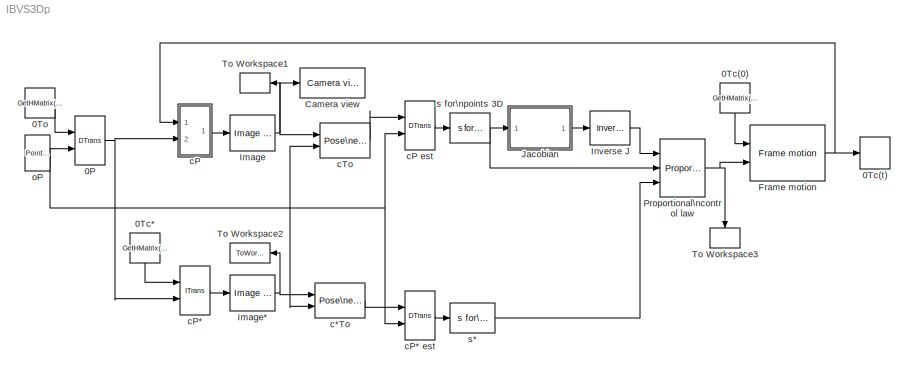
MODEL IBVS3Dp
KIND model
BLOCK [Reference] 0P  REF=vs/Features/DTrans  (lib defined in slx_df1018bcac68)
  DataTypeOverride = UseLocalSettings
  MinMaxOverflowLogging = UseLocalSettings
  Permissions = ReadWrite
  Ports = [2, 1]
  RTWFcnNameOpts = Auto
  RTWFileNameOpts = Auto
  RTWSystemCode = Auto
  SID = 1
  ShowPortLabels = on
  SimViewingDevice = off
  SourceBlock = vs/Features/DTrans
  SourceType = SubSystem
  TreatAsAtomicUnit = off
BLOCK [Constant] 0Tc(0)
  SID = 2
  Value = GetHMatrix(T0c_0)
  VectorParams1D = off
BLOCK [ToWorkspace] 0Tc(t)
  MaxDataPoints = inf
  Ports = [1]
  SID = 3
  SampleTime = -1
  SaveFormat = Structure With Time
  VariableName = T0c
BLOCK [Constant] 0Tc*
  SID = 4
  Value = GetHMatrix(T0c_x)
  VectorParams1D = off
BLOCK [Constant] 0To
  SID = 5
  Value = GetHMatrix(T0o)
  VectorParams1D = off
BLOCK [Reference] Camera view  REF=vs/Camera/Camera view  (lib defined in slx_df1018bcac68)
  Ports = [1]
  SID = 6
  SourceBlock = vs/Camera/Camera view
  em = normal
  ms = 15
  st = -1
  umax = get(c,'hres')-1
  umin = 0
  vmax = get(c,'vres')-1
  vmin = 0
BLOCK [Reference] Frame motion  REF=vs/Pose/Frame motion  (lib defined in slx_df1018bcac68)
  DataTypeOverride = UseLocalSettings
  MinMaxOverflowLogging = UseLocalSettings
  Permissions = ReadWrite
  Ports = [2, 1]
  RTWFcnNameOpts = Auto
  RTWFileNameOpts = Auto
  RTWSystemCode = Auto
  SID = 7
  ShowPortLabels = on
  SimViewingDevice = off
  SourceBlock = vs/Pose/Frame motion
  SourceType = SubSystem
  TreatAsAtomicUnit = off
BLOCK [Reference] Image  REF=vs/Camera/Image of RSP  (lib defined in slx_df1018bcac68)
  Ports = [1, 1]
  SID = 8
  SourceBlock = vs/Camera/Image of RSP
  fu = get(c,'fu')
  fv = get(c,'fv')
  u0 = get(c,'u0')
  v0 = get(c,'v0')
BLOCK [Reference] Image*  REF=vs/Camera/Image of RSP  (lib defined in slx_df1018bcac68)
  Ports = [1, 1]
  SID = 9
  SourceBlock = vs/Camera/Image of RSP
  fu = get(c,'fu')
  fv = get(c,'fv')
  u0 = get(c,'u0')
  v0 = get(c,'v0')
BLOCK [Reference] Inverse J  REF=vs/Jacobian/Inverse J  (lib defined in slx_df1018bcac68)
  DataTypeOverride = UseLocalSettings
  MinMaxOverflowLogging = UseLocalSettings
  Permissions = ReadWrite
  Ports = [1, 1]
  RTWFcnNameOpts = Auto
  RTWFileNameOpts = Auto
  RTWSystemCode = Auto
  SID = 10
  ShowPortLabels = on
  SimViewingDevice = off
  SourceBlock = vs/Jacobian/Inverse J
  SourceType = SubSystem
  TreatAsAtomicUnit = off
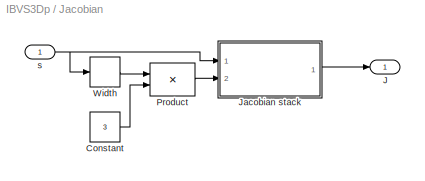
BLOCK [SubSystem] Jacobian
  AncestorBlock = vs/Jacobian/Jacobian of 3D points
  Ports = [1, 1]
  RequestExecContextInheritance = off
  SID = 11
BLOCK [Constant] Jacobian/Constant
  SID = 11:2
  Value = 3
BLOCK [Outport] Jacobian/J
  IconDisplay = Port number
  SID = 11:28
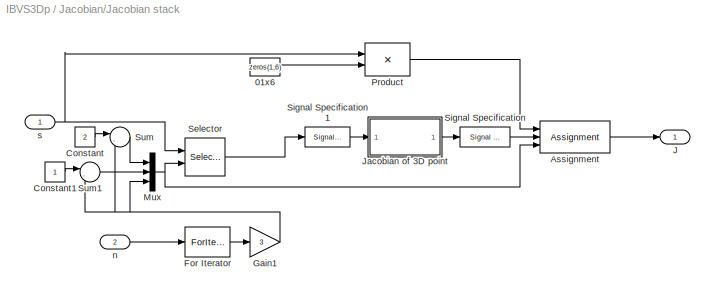
BLOCK [SubSystem] Jacobian/Jacobian stack
  Ports = [2, 1]
  RequestExecContextInheritance = off
  SID = 11:3
  TreatAsAtomicUnit = on
BLOCK [Constant] Jacobian/Jacobian stack/01x6
  SID = 11:6
  Value = zeros(1,6)
  VectorParams1D = off
BLOCK [Assignment] Jacobian/Jacobian stack/Assignment
  IndexOptions = Index vector (port),Assign all
  Indices = 1,-1
  NumberOfDimensions = 2
  OutputSizes = 1
  Ports = [3, 1]
  SID = 11:7
BLOCK [Constant] Jacobian/Jacobian stack/Constant
  SID = 11:8
  Value = 2
BLOCK [Constant] Jacobian/Jacobian stack/Constant1
  SID = 11:9
BLOCK [ForIterator] Jacobian/Jacobian stack/For Iterator
  IterationSource = external
  IterationVariableDataType = double
  Ports = [1, 1]
  SID = 11:10
BLOCK [Gain] Jacobian/Jacobian stack/Gain1
  Gain = 3
  SID = 11:11
BLOCK [Outport] Jacobian/Jacobian stack/J
  IconDisplay = Port number
  SID = 11:25
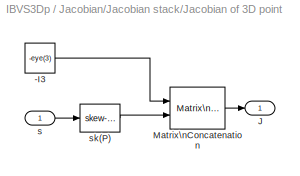
BLOCK [SubSystem] Jacobian/Jacobian stack/Jacobian of 3D point
  Ports = [1, 1]
  RequestExecContextInheritance = off
  SID = 11:12
BLOCK [Constant] Jacobian/Jacobian stack/Jacobian of 3D point/-I3
  SID = 11:14
  Value = -eye(3)
  VectorParams1D = off
BLOCK [Outport] Jacobian/Jacobian stack/Jacobian of 3D point/J
  IconDisplay = Port number
  SID = 11:17
BLOCK [Reference] Jacobian/Jacobian stack/Jacobian of 3D point/Matrix\nConcatenation  REF=simulink/Math\nOperations/Matrix\nConcatenation
  Ports = [2, 1]
  SID = 11:15
  SourceBlock = simulink/Math\nOperations/Matrix\nConcatenation
  SourceProductBaseCode = SL
  SourceProductName = Simulink
  SourceType = Matrix Concatenation
  catMethod = Horizontal
  numInports = 2
BLOCK [Inport] Jacobian/Jacobian stack/Jacobian of 3D point/s
  IconDisplay = Port number
  SID = 11:13
BLOCK [Reference] Jacobian/Jacobian stack/Jacobian of 3D point/sk(P)  REF=vs/Pose/skew-sym  (lib defined in slx_df1018bcac68)
  DataTypeOverride = UseLocalSettings
  MinMaxOverflowLogging = UseLocalSettings
  Permissions = ReadWrite
  Ports = [1, 1]
  RTWFcnNameOpts = Auto
  RTWFileNameOpts = Auto
  RTWSystemCode = Auto
  SID = 11:16
  ShowPortLabels = on
  SimViewingDevice = off
  SourceBlock = vs/Pose/skew-sym
  SourceType = SubSystem
  TreatAsAtomicUnit = off
BLOCK [Mux] Jacobian/Jacobian stack/Mux
  DisplayOption = bar
  Inputs = 3
  Ports = [3, 1]
  SID = 11:18
BLOCK [Product] Jacobian/Jacobian stack/Product
  Multiplication = Matrix(*)
  Ports = [2, 1]
  RndMeth = Floor
  SID = 11:19
BLOCK [Selector] Jacobian/Jacobian stack/Selector
  IndexOptions = Index vector (port),Select all
  Indices = 1,-1
  InputPortWidth = 3
  NumberOfDimensions = 2
  OutputSizes = 1
  Ports = [2, 1]
  SID = 11:20
BLOCK [Reference] Jacobian/Jacobian stack/Signal Specification  REF=simulink/Signal\nAttributes/Signal Specification
  D = [3 6]
  DataType = auto
  OutDataType = sfix(16)
  OutScaling = 2^0
  Ports = [1, 1]
  SID = 11:21
  SamplingMode = auto
  SignalType = auto
  SourceBlock = simulink/Signal\nAttributes/Signal Specification
  SourceProductBaseCode = SL
  SourceProductName = Simulink
  SourceType = Signal Specification
  Ts = -1
BLOCK [Reference] Jacobian/Jacobian stack/Signal Specification1  REF=simulink/Signal\nAttributes/Signal Specification
  D = [3 1]
  DataType = auto
  OutDataType = sfix(16)
  OutScaling = 2^0
  Ports = [1, 1]
  SID = 11:22
  SamplingMode = auto
  SignalType = auto
  SourceBlock = simulink/Signal\nAttributes/Signal Specification
  SourceProductBaseCode = SL
  SourceProductName = Simulink
  SourceType = Signal Specification
  Ts = -1
BLOCK [Sum] Jacobian/Jacobian stack/Sum
  IconShape = round
  Inputs = |-+
  Ports = [2, 1]
  SID = 11:23
BLOCK [Sum] Jacobian/Jacobian stack/Sum1
  IconShape = round
  Inputs = |-+
  Ports = [2, 1]
  SID = 11:24
BLOCK [Inport] Jacobian/Jacobian stack/n
  IconDisplay = Port number
  Port = 2
  SID = 11:5
BLOCK [Inport] Jacobian/Jacobian stack/s
  IconDisplay = Port number
  SID = 11:4
BLOCK [Product] Jacobian/Product
  Inputs = */
  Ports = [2, 1]
  RndMeth = Floor
  SID = 11:26
BLOCK [Width] Jacobian/Width
  SID = 11:27
BLOCK [Inport] Jacobian/s
  IconDisplay = Port number
  SID = 11:1
BLOCK [Reference] Proportional\ncontrol law  REF=vs/Jacobian/Proportional\ncontrol law  (lib defined in slx_df1018bcac68)
  Ports = [3, 1]
  SID = 12
  SourceBlock = vs/Jacobian/Proportional\ncontrol law
  lambda = lambda
BLOCK [ToWorkspace] To Workspace1
  MaxDataPoints = inf
  Ports = [1]
  SID = 13
  SampleTime = -1
  SaveFormat = Structure With Time
  VariableName = img
BLOCK [ToWorkspace] To Workspace2
  MaxDataPoints = inf
  Ports = [1]
  SID = 14
  SampleTime = -1
  SaveFormat = Structure With Time
  VariableName = img_x
BLOCK [ToWorkspace] To Workspace3
  MaxDataPoints = inf
  Ports = [1]
  SID = 15
  SampleTime = -1
  SaveFormat = Structure With Time
  VariableName = cVc
BLOCK [Reference] c*To  REF=vs/Camera/Pose\nestimation  (lib defined in slx_df1018bcac68)
  Ports = [2, 1]
  SID = 16
  SourceBlock = vs/Camera/Pose\nestimation
  fu = get(c,'fu')
  fv = get(c,'fv')
  threshold = 0.001
  u0 = get(c,'u0')
  v0 = get(c,'v0')
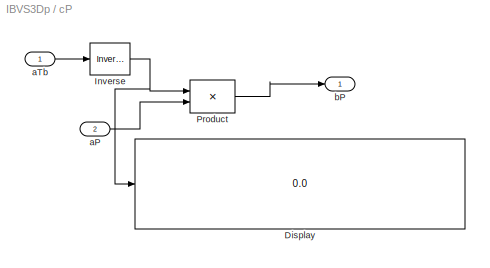
BLOCK [SubSystem] cP
  AncestorBlock = vs/Features/ITrans
  Ports = [2, 1]
  RequestExecContextInheritance = off
  SID = 17
BLOCK [Reference] cP est  REF=vs/Features/DTrans  (lib defined in slx_df1018bcac68)
  DataTypeOverride = UseLocalSettings
  MinMaxOverflowLogging = UseLocalSettings
  Permissions = ReadWrite
  Ports = [2, 1]
  RTWFcnNameOpts = Auto
  RTWFileNameOpts = Auto
  RTWSystemCode = Auto
  SID = 18
  ShowPortLabels = on
  SimViewingDevice = off
  SourceBlock = vs/Features/DTrans
  SourceType = SubSystem
  TreatAsAtomicUnit = off
BLOCK [Reference] cP*  REF=vs/Features/ITrans  (lib defined in slx_df1018bcac68)
  DataTypeOverride = UseLocalSettings
  MinMaxOverflowLogging = UseLocalSettings
  Permissions = ReadWrite
  Ports = [2, 1]
  RTWFcnNameOpts = Auto
  RTWFileNameOpts = Auto
  RTWSystemCode = Auto
  SID = 19
  ShowPortLabels = on
  SimViewingDevice = off
  SourceBlock = vs/Features/ITrans
  SourceType = SubSystem
  TreatAsAtomicUnit = off
BLOCK [Reference] cP* est  REF=vs/Features/DTrans  (lib defined in slx_df1018bcac68)
  DataTypeOverride = UseLocalSettings
  MinMaxOverflowLogging = UseLocalSettings
  Permissions = ReadWrite
  Ports = [2, 1]
  RTWFcnNameOpts = Auto
  RTWFileNameOpts = Auto
  RTWSystemCode = Auto
  SID = 20
  ShowPortLabels = on
  SimViewingDevice = off
  SourceBlock = vs/Features/DTrans
  SourceType = SubSystem
  TreatAsAtomicUnit = off
BLOCK [Display] cP/Display
  Decimation = 1
  Ports = [1]
  SID = 17:3
BLOCK [Reference] cP/Inverse  REF=vs/Pose/Inverse  (lib defined in slx_df1018bcac68)
  DataTypeOverride = UseLocalSettings
  MinMaxOverflowLogging = UseLocalSettings
  Permissions = ReadWrite
  Ports = [1, 1]
  RTWFcnNameOpts = Auto
  RTWFileNameOpts = Auto
  RTWSystemCode = Auto
  SID = 17:4
  ShowPortLabels = on
  SimViewingDevice = off
  SourceBlock = vs/Pose/Inverse
  SourceType = SubSystem
  TreatAsAtomicUnit = off
BLOCK [Product] cP/Product
  Multiplication = Matrix(*)
  Ports = [2, 1]
  RndMeth = Floor
  SID = 17:5
BLOCK [Inport] cP/aP
  IconDisplay = Port number
  Port = 2
  SID = 17:2
BLOCK [Inport] cP/aTb
  IconDisplay = Port number
  SID = 17:1
BLOCK [Outport] cP/bP
  IconDisplay = Port number
  SID = 17:6
BLOCK [Reference] cTo  REF=vs/Camera/Pose\nestimation  (lib defined in slx_df1018bcac68)
  Ports = [2, 1]
  SID = 21
  SourceBlock = vs/Camera/Pose\nestimation
  fu = get(c,'fu')
  fv = get(c,'fv')
  threshold = 0.001
  u0 = get(c,'u0')
  v0 = get(c,'v0')
BLOCK [Reference] oP  REF=vs/Features/Point Matrix  (lib defined in slx_df1018bcac68)
  Ports = [0, 1]
  SID = 22
  SourceBlock = vs/Features/Point Matrix
  m = coords(p)
BLOCK [Reference] s for\npoints 3D  REF=vs/Jacobian/s for\npoints 3D  (lib defined in slx_df1018bcac68)
  DataTypeOverride = UseLocalSettings
  MinMaxOverflowLogging = UseLocalSettings
  Permissions = ReadWrite
  Ports = [1, 1]
  RTWFcnNameOpts = Auto
  RTWFileNameOpts = Auto
  RTWSystemCode = Auto
  SID = 23
  ShowPortLabels = on
  SimViewingDevice = off
  SourceBlock = vs/Jacobian/s for\npoints 3D
  SourceType = SubSystem
  TreatAsAtomicUnit = off
BLOCK [Reference] s*  REF=vs/Jacobian/s for\npoints 3D  (lib defined in slx_df1018bcac68)
  DataTypeOverride = UseLocalSettings
  MinMaxOverflowLogging = UseLocalSettings
  Permissions = ReadWrite
  Ports = [1, 1]
  RTWFcnNameOpts = Auto
  RTWFileNameOpts = Auto
  RTWSystemCode = Auto
  SID = 24
  ShowPortLabels = on
  SimViewingDevice = off
  SourceBlock = vs/Jacobian/s for\npoints 3D
  SourceType = SubSystem
  TreatAsAtomicUnit = off
NET 0P:1 -> cP*:2, cP:2
LINE 0Tc(0):1 -> Frame motion:1
LINE 0Tc*:1 -> cP*:1
LINE 0To:1 -> 0P:1
NET Frame motion:1 -> 0Tc(t):1, cP:1
NET Image*:1 -> To Workspace2:1, c*To:1
NET Image:1 -> Camera view:1, To Workspace1:1, cTo:1
LINE Inverse J:1 -> Proportional\ncontrol law:1
LINE Jacobian/Constant:1 -> Jacobian/Product:2
LINE Jacobian/Jacobian stack/01x6:1 -> Jacobian/Jacobian stack/Product:2
LINE Jacobian/Jacobian stack/Assignment:1 -> Jacobian/Jacobian stack/J:1
LINE Jacobian/Jacobian stack/Constant1:1 -> Jacobian/Jacobian stack/Sum1:1
LINE Jacobian/Jacobian stack/Constant:1 -> Jacobian/Jacobian stack/Sum:1
LINE Jacobian/Jacobian stack/For Iterator:1 -> Jacobian/Jacobian stack/Gain1:1
NET Jacobian/Jacobian stack/Gain1:1 -> Jacobian/Jacobian stack/Mux:3, Jacobian/Jacobian stack/Sum1:2, Jacobian/Jacobian stack/Sum:2
LINE Jacobian/Jacobian stack/Jacobian of 3D point/-I3:1 -> Jacobian/Jacobian stack/Jacobian of 3D point/Matrix\nConcatenation:1
LINE Jacobian/Jacobian stack/Jacobian of 3D point/Matrix\nConcatenation:1 -> Jacobian/Jacobian stack/Jacobian of 3D point/J:1
LINE Jacobian/Jacobian stack/Jacobian of 3D point/s:1 -> Jacobian/Jacobian stack/Jacobian of 3D point/sk(P):1
LINE Jacobian/Jacobian stack/Jacobian of 3D point/sk(P):1 -> Jacobian/Jacobian stack/Jacobian of 3D point/Matrix\nConcatenation:2
LINE Jacobian/Jacobian stack/Jacobian of 3D point:1 -> Jacobian/Jacobian stack/Signal Specification:1
NET Jacobian/Jacobian stack/Mux:1 -> Jacobian/Jacobian stack/Assignment:3, Jacobian/Jacobian stack/Selector:2
LINE Jacobian/Jacobian stack/Product:1 -> Jacobian/Jacobian stack/Assignment:1
LINE Jacobian/Jacobian stack/Selector:1 -> Jacobian/Jacobian stack/Signal Specification1:1
LINE Jacobian/Jacobian stack/Signal Specification1:1 -> Jacobian/Jacobian stack/Jacobian of 3D point:1
LINE Jacobian/Jacobian stack/Signal Specification:1 -> Jacobian/Jacobian stack/Assignment:2
LINE Jacobian/Jacobian stack/Sum1:1 -> Jacobian/Jacobian stack/Mux:2
LINE Jacobian/Jacobian stack/Sum:1 -> Jacobian/Jacobian stack/Mux:1
LINE Jacobian/Jacobian stack/n:1 -> Jacobian/Jacobian stack/For Iterator:1
NET Jacobian/Jacobian stack/s:1 -> Jacobian/Jacobian stack/Product:1, Jacobian/Jacobian stack/Selector:1
LINE Jacobian/Jacobian stack:1 -> Jacobian/J:1
LINE Jacobian/Product:1 -> Jacobian/Jacobian stack:2
LINE Jacobian/Width:1 -> Jacobian/Product:1
NET Jacobian/s:1 -> Jacobian/Jacobian stack:1, Jacobian/Width:1
LINE Jacobian:1 -> Inverse J:1
NET Proportional\ncontrol law:1 -> Frame motion:2, To Workspace3:1
LINE c*To:1 -> cP* est:1
LINE cP est:1 -> s for\npoints 3D:1
LINE cP* est:1 -> s*:1
LINE cP*:1 -> Image*:1
NET cP/Inverse:1 -> cP/Display:1, cP/Product:1
LINE cP/Product:1 -> cP/bP:1
LINE cP/aP:1 -> cP/Product:2
LINE cP/aTb:1 -> cP/Inverse:1
LINE cP:1 -> Image:1
LINE cTo:1 -> cP est:1
NET oP:1 -> 0P:2, c*To:2, cP est:2, cP* est:2, cTo:2
NET s for\npoints 3D:1 -> Jacobian:1, Proportional\ncontrol law:2
LINE s*:1 -> Proportional\ncontrol law:3
note: NET lines group one-source signal fan-out (src -> all destinations, sorted); 1:1 wires keep LINE
